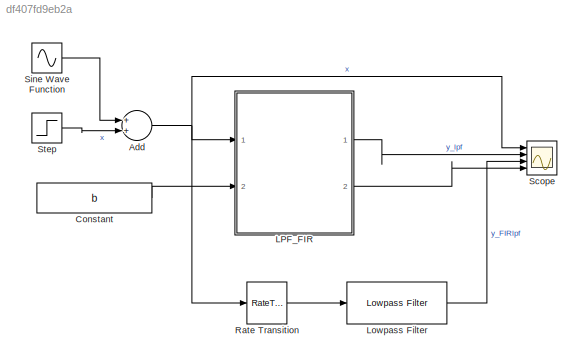
MODEL slx_df407fd9eb2a
KIND model
CONFIG AbsTol = auto
CONFIG EnableMultiTasking = off
CONFIG FixedStep = 50e-6
CONFIG MaxStep = auto
CONFIG MinStep = auto
CONFIG RelTol = 1e-3
CONFIG SampleTimeConstraint = Unconstrained
CONFIG Solver = FixedStepDiscrete
CONFIG SolverName = FixedStepDiscrete
CONFIG StartTime = 0.0
CONFIG StopTime = 0.1
BLOCK [Sum] Add
  InputSameDT = off
  OutDataTypeStr = Inherit: Inherit via internal rule
  Ports = [2, 1]
  SaturateOnIntegerOverflow = off
BLOCK [Constant] Constant
  Value = b
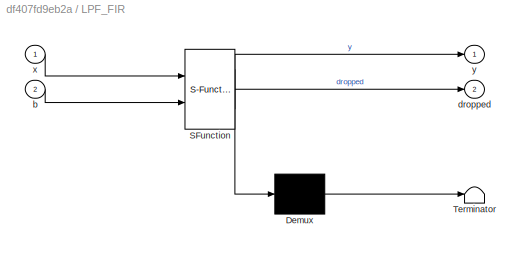
BLOCK [SubSystem] LPF_FIR
  ErrorFcn = Stateflow.Translate.translate
  PermitHierarchicalResolution = ExplicitOnly
  Ports = [2, 2]
  RequestExecContextInheritance = off
  SFBlockType = MATLAB Function
  SystemSampleTime = Ts
  TreatAsAtomicUnit = on
BLOCK [Demux] LPF_FIR/ Demux 
  Outputs = 1
  Ports = [1, 1]
BLOCK [S-Function] LPF_FIR/ SFunction 
  EnableBusSupport = on
  FunctionName = sf_sfun
  PortCounts = [2 3]
  Ports = [2, 3]
  SFcnIsStateOwnerBlock = off
  SFunctionDeploymentMode = off
  Tag = Stateflow S-Function FiltrosDigitais 1
BLOCK [Terminator] LPF_FIR/ Terminator 
BLOCK [Inport] LPF_FIR/b
  IconDisplay = Port number
  Port = 2
BLOCK [Outport] LPF_FIR/dropped
  IconDisplay = Port number
  Port = 2
BLOCK [Inport] LPF_FIR/x
  IconDisplay = Port number
BLOCK [Outport] LPF_FIR/y
  IconDisplay = Port number
BLOCK [Reference] Lowpass Filter  REF=dspfdesign/Lowpass Filter
  Ports = [1, 1]
  SourceBlock = dspfdesign/Lowpass Filter
  SourceProductBaseCode = DS
  SourceProductName = DSP System Toolbox
  SourceType = dsp.LowpassFilter
BLOCK [RateTransition] Rate Transition
  OutPortSampleTime = Ts
BLOCK [Scope] Scope
  Floating = off
  NumInputPorts = 4
  Ports = [4]
  ScopeSpecificationString = Simulink.scopes.TimeScopeBlockCfg('CurrentConfiguration', extmgr.ConfigurationSet(extmgr.Configuration('Core','General UI',true),extmgr.Configuration('Core','Source UI',true),extmgr.Configuration('Sources','WiredSimulink',true),extmgr.Configuration('Visuals','Time Domain',true,'SerializedDisplays',{struct('MinYLimReal','-1.00000','MaxYLimReal','1.00000','YLabelReal','','MinYLimMag','0.00000','MaxY...<+1837ch>
BLOCK [Sin] Sine Wave Function
  Frequency = 2*pi*100
  Ports = [0, 1]
  SampleTime = 0
BLOCK [Step] Step
  After = 2
  SampleTime = 0
  Time = 100000
NET Add:1 -> LPF_FIR:1, Rate Transition:1, Scope:1
LINE Constant:1 -> LPF_FIR:2
LINE LPF_FIR:1 -> Scope:2
LINE LPF_FIR:2 -> Scope:4
LINE Lowpass Filter:1 -> Scope:3
LINE Rate Transition:1 -> Lowpass Filter:1
LINE Sine Wave Function:1 -> Add:1
LINE Step:1 -> Add:2
note: NET lines group one-source signal fan-out (src -> all destinations, sorted); 1:1 wires keep LINE
CHART LPF_FIR states=1 transitions=1
  STATE_LABEL 'eML_blk_kernel()'
  STATE_LABEL 'SCRIPT:\n%%%%%%%%%%%%%%%%%%%%%%%%%%%%%%%%%%%%%%%%%%%%%%%%%%%%%%%%%%%%%%%%%%%%%%%%%%\n% LPF FIR max 51\n%%%%%%%%%%%%%%%%%%%%%%%%%%%%%%%%%%%%%%%%%%%%%%%%%%%%%%%%%%%%%%%%%%%%%%%%%%\n% Prog/rev history\n%   Mota - 2021-04-19: first release\n%\nfunction [y,dropped]   = LPF_FIR ( x, b)\n\npersistent ent N\n\n%%%%%%%%%%%%%%%%%%%%%%%%%%%%%%%%%%\n% Values at the first cycle\n%%%%%%%%%%%%%%%%%%%%%%%%%%%%%%%%%%\nif isempt...<+304ch>'
